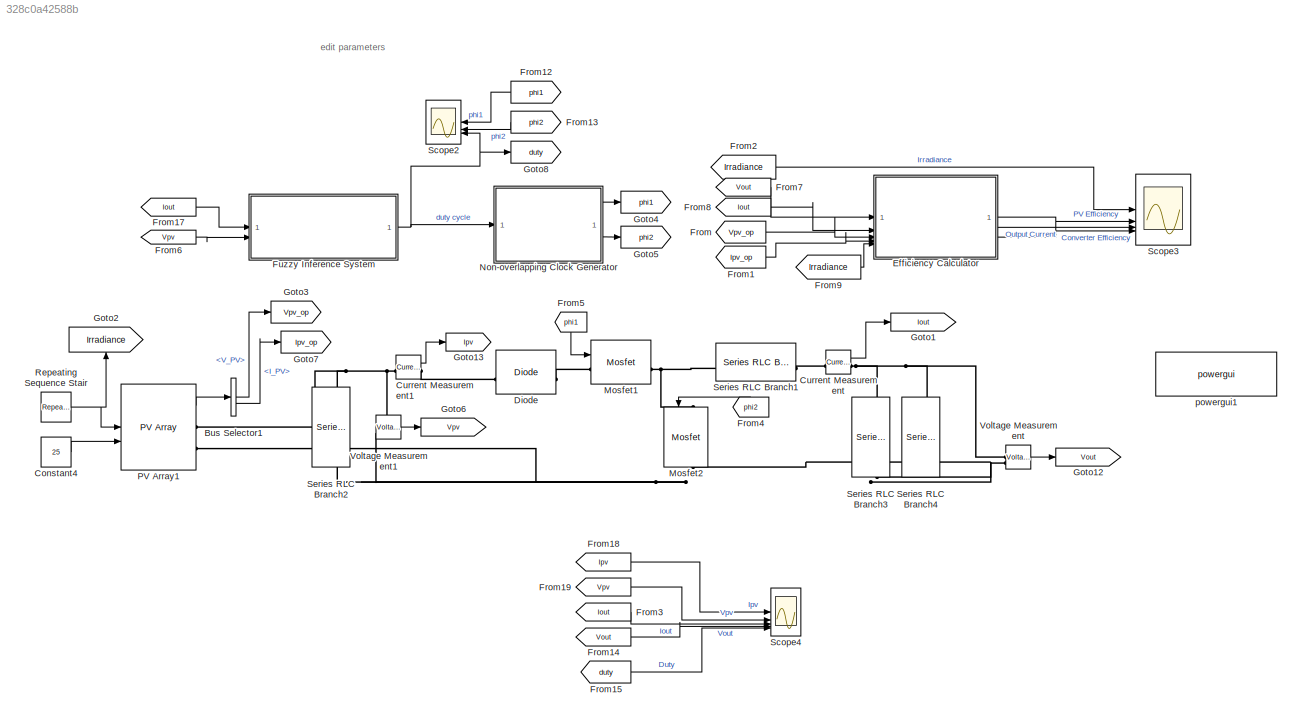
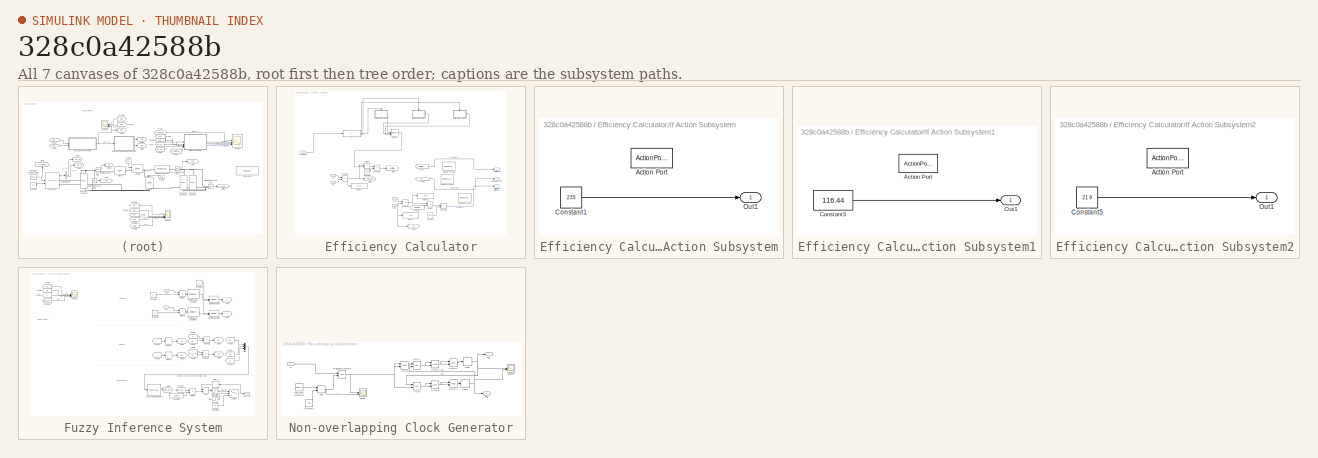
[diagram: thumbnail index - all 7 canvases of the model, root first then tree order]
MODEL slx_328c0a42588b
KIND model
CONFIG AbsTol = auto
CONFIG EnableMultiTasking = off
CONFIG FixedStep = auto
CONFIG InitFcn = run('../model_paramters/buck_converter_paramters.m')
CONFIG MaxStep = auto
CONFIG MinStep = auto
CONFIG RelTol = 1e-3
CONFIG SampleTimeConstraint = Unconstrained
CONFIG SolverName = VariableStepAuto
CONFIG StartTime = 0.0
CONFIG StopTime = Sim_Time
BLOCK [BusSelector] Bus Selector1
  OutputSignals = V_PV,I_PV
BLOCK [Constant] Constant4
  Value = 25
BLOCK [Reference] Current Measurement  REF=spsCurrentMeasurementLib/Current Measurement
  LibrarySourceBlock = sps_lib/Sensors and Measurements/Current Measurement
  SourceBlock = spsCurrentMeasurementLib/Current Measurement
  SourceType = Current Measurement
  UserDataPersistent = on
BLOCK [Reference] Current Measurement1  REF=spsCurrentMeasurementLib/Current Measurement
  LibrarySourceBlock = sps_lib/Sensors and Measurements/Current Measurement
  SourceBlock = spsCurrentMeasurementLib/Current Measurement
  SourceType = Current Measurement
  UserDataPersistent = on
BLOCK [Reference] Diode  REF=spsDiodeLib/Diode
  LibrarySourceBlock = sps_lib/Power Electronics/Diode
  SourceBlock = spsDiodeLib/Diode
  SourceType = Diode
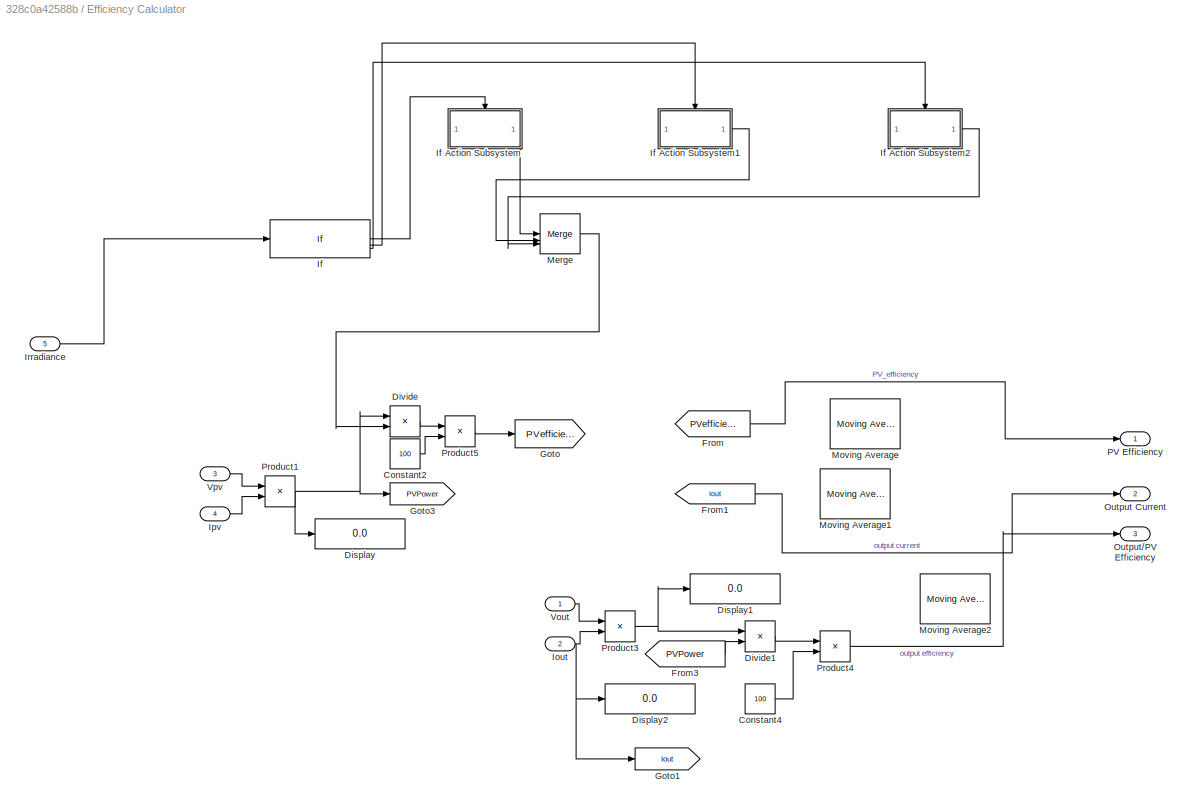
BLOCK [SubSystem] Efficiency Calculator
BLOCK [Constant] Efficiency Calculator/Constant2
  Value = 100
BLOCK [Constant] Efficiency Calculator/Constant4
  Value = 100
BLOCK [Display] Efficiency Calculator/Display
  Decimation = 1
  Format = decimal (Stored Integer)
BLOCK [Display] Efficiency Calculator/Display1
  Decimation = 1
  Format = decimal (Stored Integer)
BLOCK [Display] Efficiency Calculator/Display2
  Decimation = 1
  Format = decimal (Stored Integer)
BLOCK [Product] Efficiency Calculator/Divide
  Inputs = */
BLOCK [Product] Efficiency Calculator/Divide1
  Inputs = */
BLOCK [From] Efficiency Calculator/From
  GotoTag = PVefficiency
BLOCK [From] Efficiency Calculator/From1
  GotoTag = Iout
BLOCK [From] Efficiency Calculator/From3
  GotoTag = PVPower
BLOCK [Goto] Efficiency Calculator/Goto
  GotoTag = PVefficiency
BLOCK [Goto] Efficiency Calculator/Goto1
  GotoTag = Iout
BLOCK [Goto] Efficiency Calculator/Goto3
  GotoTag = PVPower
BLOCK [If] Efficiency Calculator/If
  ElseIfExpressions = u1==500, u1==100
  IfExpression = u1 == 1000
  ShowElse = off
BLOCK [SubSystem] Efficiency Calculator/If Action Subsystem
  TreatAsAtomicUnit = on
BLOCK [ActionPort] Efficiency Calculator/If Action Subsystem/Action Port
  ActionPortLabel = if(u1 == 1000)
BLOCK [Constant] Efficiency Calculator/If Action Subsystem/Constant1
  Value = 235
BLOCK [Outport] Efficiency Calculator/If Action Subsystem/Out1
BLOCK [SubSystem] Efficiency Calculator/If Action Subsystem1
  TreatAsAtomicUnit = on
BLOCK [ActionPort] Efficiency Calculator/If Action Subsystem1/Action Port
  ActionPortLabel = elseif(u1==500)
BLOCK [Constant] Efficiency Calculator/If Action Subsystem1/Constant3
  Value = 116.44
BLOCK [Outport] Efficiency Calculator/If Action Subsystem1/Out1
BLOCK [SubSystem] Efficiency Calculator/If Action Subsystem2
  TreatAsAtomicUnit = on
BLOCK [ActionPort] Efficiency Calculator/If Action Subsystem2/Action Port
  ActionPortLabel = elseif( u1==100)
BLOCK [Constant] Efficiency Calculator/If Action Subsystem2/Constant5
  Value = 21.9
BLOCK [Outport] Efficiency Calculator/If Action Subsystem2/Out1
BLOCK [Inport] Efficiency Calculator/Iout
  Port = 2
BLOCK [Inport] Efficiency Calculator/Ipv
  Port = 4
BLOCK [Inport] Efficiency Calculator/Irradiance
  Port = 5
BLOCK [Merge] Efficiency Calculator/Merge
  Inputs = 3
BLOCK [Reference] Efficiency Calculator/Moving Average  REF=eeGeneralControl/Moving Average
  Commented = on
  LibrarySourceBlock = ee_sl_lib/General Control/Moving Average
  SourceBlock = eeGeneralControl/Moving Average
  SourceType = Moving Average
BLOCK [Reference] Efficiency Calculator/Moving Average1  REF=eeGeneralControl/Moving Average
  Commented = on
  LibrarySourceBlock = ee_sl_lib/General Control/Moving Average
  SourceBlock = eeGeneralControl/Moving Average
  SourceType = Moving Average
BLOCK [Reference] Efficiency Calculator/Moving Average2  REF=eeGeneralControl/Moving Average
  Commented = on
  LibrarySourceBlock = ee_sl_lib/General Control/Moving Average
  SourceBlock = eeGeneralControl/Moving Average
  SourceType = Moving Average
BLOCK [Outport] Efficiency Calculator/Output Current
  Port = 2
BLOCK [Outport] Efficiency Calculator/Output//PV Efficiency
  NameLocation = left
  Port = 3
BLOCK [Outport] Efficiency Calculator/PV Efficiency
BLOCK [Product] Efficiency Calculator/Product1
BLOCK [Product] Efficiency Calculator/Product3
BLOCK [Product] Efficiency Calculator/Product4
BLOCK [Product] Efficiency Calculator/Product5
BLOCK [Inport] Efficiency Calculator/Vout
BLOCK [Inport] Efficiency Calculator/Vpv
  Port = 3
BLOCK [From] From
  GotoTag = Vpv_op
BLOCK [From] From1
  GotoTag = Ipv_op
BLOCK [From] From12
  GotoTag = phi1
  NameLocation = top
BLOCK [From] From13
  GotoTag = phi2
  NameLocation = top
BLOCK [From] From14
  GotoTag = Vout
BLOCK [From] From15
  GotoTag = duty
BLOCK [From] From17
  GotoTag = Iout
BLOCK [From] From18
  GotoTag = Ipv
BLOCK [From] From19
  GotoTag = Vpv
BLOCK [From] From2
  GotoTag = Irradiance
BLOCK [From] From3
  GotoTag = Iout
BLOCK [From] From4
  GotoTag = phi2
  NameLocation = right
BLOCK [From] From5
  GotoTag = phi1
  NameLocation = left
BLOCK [From] From6
  GotoTag = Vpv
BLOCK [From] From7
  GotoTag = Vout
BLOCK [From] From8
  GotoTag = Iout
BLOCK [From] From9
  GotoTag = Irradiance
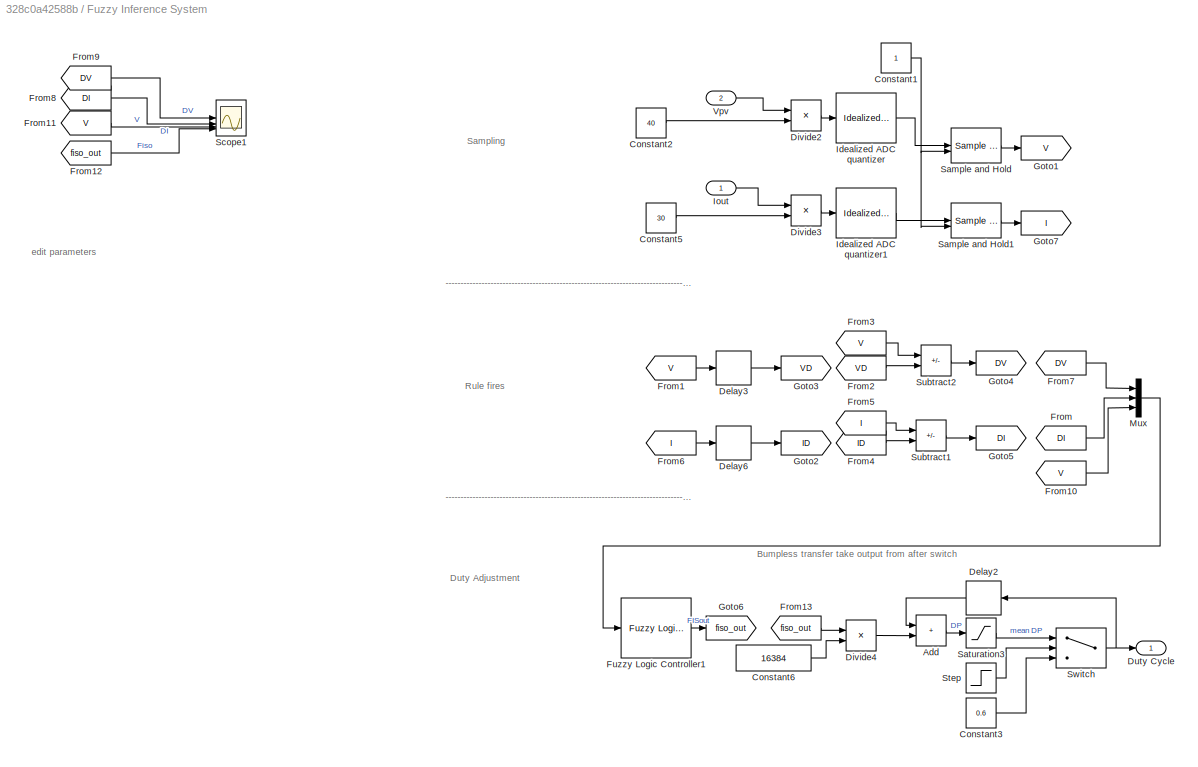
BLOCK [SubSystem] Fuzzy Inference System
BLOCK [Sum] Fuzzy Inference System/Add
  IconShape = rectangular
BLOCK [Constant] Fuzzy Inference System/Constant1
BLOCK [Constant] Fuzzy Inference System/Constant2
  Value = 40
BLOCK [Constant] Fuzzy Inference System/Constant3
  Value = 0.6
BLOCK [Constant] Fuzzy Inference System/Constant5
  Value = 30
BLOCK [Constant] Fuzzy Inference System/Constant6
  Value = 16384
BLOCK [Delay] Fuzzy Inference System/Delay2
  DelayLength = 1
  InputPortMap = u0
  NameLocation = top
  SampleTime = 1/sampling
BLOCK [Delay] Fuzzy Inference System/Delay3
  DelayLength = 1
  InputPortMap = u0
  SampleTime = 1/sampling
BLOCK [Delay] Fuzzy Inference System/Delay6
  DelayLength = 1
  InputPortMap = u0
  SampleTime = 1/sampling
BLOCK [Product] Fuzzy Inference System/Divide2
  Inputs = */
BLOCK [Product] Fuzzy Inference System/Divide3
  Inputs = */
BLOCK [Product] Fuzzy Inference System/Divide4
  Inputs = */
BLOCK [Outport] Fuzzy Inference System/Duty Cycle
BLOCK [From] Fuzzy Inference System/From
  GotoTag = DI
BLOCK [From] Fuzzy Inference System/From1
  GotoTag = V
BLOCK [From] Fuzzy Inference System/From10
  GotoTag = V
BLOCK [From] Fuzzy Inference System/From11
  GotoTag = V
BLOCK [From] Fuzzy Inference System/From12
  GotoTag = fiso_out
BLOCK [From] Fuzzy Inference System/From13
  GotoTag = fiso_out
BLOCK [From] Fuzzy Inference System/From2
  GotoTag = VD
BLOCK [From] Fuzzy Inference System/From3
  GotoTag = V
BLOCK [From] Fuzzy Inference System/From4
  GotoTag = ID
  NameLocation = top
BLOCK [From] Fuzzy Inference System/From5
  GotoTag = I
  NameLocation = top
BLOCK [From] Fuzzy Inference System/From6
  GotoTag = I
BLOCK [From] Fuzzy Inference System/From7
  GotoTag = DV
BLOCK [From] Fuzzy Inference System/From8
  GotoTag = DI
BLOCK [From] Fuzzy Inference System/From9
  GotoTag = DV
BLOCK [Reference] Fuzzy Inference System/Fuzzy Logic Controller1  REF=fuzblock/Fuzzy Logic   (lib defined in mdl_858b3b3e7478)
Controller
  SourceBlock = fuzblock/Fuzzy Logic \nController
  SourceType = Fuzzy Inference System
BLOCK [Goto] Fuzzy Inference System/Goto1
  GotoTag = V
BLOCK [Goto] Fuzzy Inference System/Goto2
  GotoTag = ID
BLOCK [Goto] Fuzzy Inference System/Goto3
  GotoTag = VD
BLOCK [Goto] Fuzzy Inference System/Goto4
  GotoTag = DV
BLOCK [Goto] Fuzzy Inference System/Goto5
  GotoTag = DI
  NameLocation = top
BLOCK [Goto] Fuzzy Inference System/Goto6
  GotoTag = fiso_out
BLOCK [Goto] Fuzzy Inference System/Goto7
  GotoTag = I
BLOCK [Reference] Fuzzy Inference System/Idealized ADC quantizer  REF=simulink_extras/Additional
Discrete/Idealized ADC quantizer
  AttributesFormatString = (settings: %<NumberOfConverterBits>-bit converter\nVmin: %<Vmin>, Vmax: %<Vmax>)
  SourceBlock = simulink_extras/Additional\nDiscrete/Idealized ADC quantizer
  SourceType = IdealADC
BLOCK [Reference] Fuzzy Inference System/Idealized ADC quantizer1  REF=simulink_extras/Additional
Discrete/Idealized ADC quantizer
  AttributesFormatString = (settings: %<NumberOfConverterBits>-bit converter\nVmin: %<Vmin>, Vmax: %<Vmax>)
  SourceBlock = simulink_extras/Additional\nDiscrete/Idealized ADC quantizer
  SourceType = IdealADC
BLOCK [Inport] Fuzzy Inference System/Iout
BLOCK [Mux] Fuzzy Inference System/Mux
  DisplayOption = bar
  Inputs = 3
BLOCK [Reference] Fuzzy Inference System/Sample and Hold  REF=spsSampleandHoldLib/Sample and
Hold
  LibrarySourceBlock = sps_lib/Control/Sample and\nHold
  SourceBlock = spsSampleandHoldLib/Sample and\nHold
  SourceType = Sample and Hold
BLOCK [Reference] Fuzzy Inference System/Sample and Hold1  REF=spsSampleandHoldLib/Sample and
Hold
  LibrarySourceBlock = sps_lib/Control/Sample and\nHold
  SourceBlock = spsSampleandHoldLib/Sample and\nHold
  SourceType = Sample and Hold
BLOCK [Saturate] Fuzzy Inference System/Saturation3
  LowerLimit = 0.25
  UpperLimit = 0.75
BLOCK [Scope] Fuzzy Inference System/Scope1
  Floating = off
  NumInputPorts = 4
  ScopeSpecificationString = Simulink.scopes.TimeScopeBlockCfg('CurrentConfiguration', extmgr.ConfigurationSet(extmgr.Configuration('Core','General UI',true),extmgr.Configuration('Core','Source UI',true),extmgr.Configuration('Sources','WiredSimulink',true,'DataLoggingVariableName','ScopeData1'),extmgr.Configuration('Visuals','Time Domain',true,'SerializedDisplays',{struct('MinYLimReal','-116.875','MaxYLimReal','331.875','YLab...<+3887ch>
BLOCK [Step] Fuzzy Inference System/Step
  Time = Sim_Time/3
BLOCK [Sum] Fuzzy Inference System/Subtract1
  IconShape = rectangular
  Inputs = +-
  NameLocation = top
BLOCK [Sum] Fuzzy Inference System/Subtract2
  IconShape = rectangular
  Inputs = +-
BLOCK [Switch] Fuzzy Inference System/Switch
  Criteria = u2 > Threshold
  InputSameDT = off
  SaturateOnIntegerOverflow = off
  Threshold = 0.5
BLOCK [Inport] Fuzzy Inference System/Vpv
  Port = 2
BLOCK [Goto] Goto1
  GotoTag = Iout
BLOCK [Goto] Goto12
  GotoTag = Vout
BLOCK [Goto] Goto13
  GotoTag = Ipv
BLOCK [Goto] Goto2
  GotoTag = Irradiance
  NameLocation = right
BLOCK [Goto] Goto3
  GotoTag = Vpv_op
BLOCK [Goto] Goto4
  GotoTag = phi1
BLOCK [Goto] Goto5
  GotoTag = phi2
BLOCK [Goto] Goto6
  GotoTag = Vpv
BLOCK [Goto] Goto7
  GotoTag = Ipv_op
BLOCK [Goto] Goto8
  GotoTag = duty
BLOCK [Reference] Mosfet1  REF=spsMosfetLib/Mosfet
  LibrarySourceBlock = sps_lib/Power Electronics/Mosfet
  SourceBlock = spsMosfetLib/Mosfet
  SourceType = Mosfet
BLOCK [Reference] Mosfet2  REF=spsMosfetLib/Mosfet
  LibrarySourceBlock = sps_lib/Power Electronics/Mosfet
  NameLocation = left
  SourceBlock = spsMosfetLib/Mosfet
  SourceType = Mosfet
BLOCK [SubSystem] Non-overlapping Clock Generator
BLOCK [Sum] Non-overlapping Clock Generator/Add3
  IconShape = rectangular
BLOCK [Constant] Non-overlapping Clock Generator/Constant1
  Value = 0.5
BLOCK [Inport] Non-overlapping Clock Generator/D
BLOCK [Delay] Non-overlapping Clock Generator/Delay
  DelayLength = 1
  InputPortMap = u0
  SampleTime = 1/(f_sw*100)
BLOCK [Delay] Non-overlapping Clock Generator/Delay1
  DelayLength = 1
  InputPortMap = u0
  SampleTime = 1/(f_sw*100)
BLOCK [Logic] Non-overlapping Clock Generator/NAND
  AllPortsSameDT = off
  IconShape = distinctive
  Operator = NAND
  OutDataTypeStr = boolean
BLOCK [Logic] Non-overlapping Clock Generator/NAND1
  AllPortsSameDT = off
  IconShape = distinctive
  Operator = NAND
  OutDataTypeStr = boolean
BLOCK [Logic] Non-overlapping Clock Generator/NAND2
  AllPortsSameDT = off
  IconShape = distinctive
  Operator = NAND
  OutDataTypeStr = boolean
BLOCK [Logic] Non-overlapping Clock Generator/NAND3
  AllPortsSameDT = off
  IconShape = distinctive
  Operator = NAND
  OutDataTypeStr = boolean
BLOCK [Logic] Non-overlapping Clock Generator/NAND4
  AllPortsSameDT = off
  IconShape = distinctive
  Operator = NAND
  OutDataTypeStr = boolean
BLOCK [Logic] Non-overlapping Clock Generator/NOR
  AllPortsSameDT = off
  IconShape = distinctive
  Operator = NOR
  OutDataTypeStr = boolean
BLOCK [Logic] Non-overlapping Clock Generator/NOR1
  AllPortsSameDT = off
  IconShape = distinctive
  Operator = NOR
  OutDataTypeStr = boolean
BLOCK [Outport] Non-overlapping Clock Generator/Phi1
BLOCK [Outport] Non-overlapping Clock Generator/Phi2
  Port = 2
BLOCK [RelationalOperator] Non-overlapping Clock Generator/Relational Operator
  InputSameDT = off
  OutDataTypeStr = boolean
  RndMeth = Simplest
BLOCK [SignalGenerator] Non-overlapping Clock Generator/Sawtooth Generator
  Amplitude = -0.5
  Frequency = f_sw
  WaveForm = sawtooth
BLOCK [Scope] Non-overlapping Clock Generator/Scope
  Floating = off
  NumInputPorts = 2
  ScopeSpecificationString = Simulink.scopes.TimeScopeBlockCfg('CurrentConfiguration', extmgr.ConfigurationSet(extmgr.Configuration('Core','General UI',true),extmgr.Configuration('Core','Source UI',true),extmgr.Configuration('Sources','WiredSimulink',true,'DataLoggingVariableName','ScopeData4'),extmgr.Configuration('Visuals','Time Domain',true,'SerializedDisplays',{struct('MinYLimReal','0.9','MaxYLimReal','1.1','YLabelReal','...<+2611ch>
BLOCK [Scope] Non-overlapping Clock Generator/Scope1
  Floating = off
  NumInputPorts = 2
  ScopeSpecificationString = Simulink.scopes.TimeScopeBlockCfg('CurrentConfiguration', extmgr.ConfigurationSet(extmgr.Configuration('Core','General UI',true),extmgr.Configuration('Core','Source UI',true),extmgr.Configuration('Sources','WiredSimulink',true,'DataLoggingVariableName','ScopeData1'),extmgr.Configuration('Visuals','Time Domain',true,'SerializedDisplays',{struct('MinYLimReal','-0.125','MaxYLimReal','1.125','YLabelRe...<+2580ch>
BLOCK [Reference] PV Array1  REF=spsPVArrayLib/PV Array
  LibrarySourceBlock = sps_lib/Sources/PV Array
  SourceBlock = spsPVArrayLib/PV Array
  SourceType = PV array
BLOCK [Reference] Repeating Sequence Stair  REF=simulink/Sources/Repeating
Sequence
Stair
  SourceBlock = simulink/Sources/Repeating\nSequence\nStair
  SourceType = Repeating Sequence Stair
BLOCK [Scope] Scope2
  Floating = off
  NameLocation = top
  NumInputPorts = 3
  ScopeSpecificationString = Simulink.scopes.TimeScopeBlockCfg('CurrentConfiguration', extmgr.ConfigurationSet(extmgr.Configuration('Core','General UI',true,'FigureColor',[1 1 1]),extmgr.Configuration('Core','Source UI',true),extmgr.Configuration('Sources','WiredSimulink',true,'DataLoggingVariableName','ScopeData5'),extmgr.Configuration('Visuals','Time Domain',true,'SerializedDisplays',{struct('MinYLimReal','-0.125','MaxYLimR...<+3492ch>
BLOCK [Scope] Scope3
  Floating = off
  NumInputPorts = 4
  ScopeSpecificationString = Simulink.scopes.TimeScopeBlockCfg('CurrentConfiguration', extmgr.ConfigurationSet(extmgr.Configuration('Core','General UI',true,'FigureColor',[1 1 1]),extmgr.Configuration('Core','Source UI',true),extmgr.Configuration('Sources','WiredSimulink',true,'DataLoggingVariableName','ScopeData1'),extmgr.Configuration('Visuals','Time Domain',true,'PlotType','Line','SerializedDisplays',{struct('MinYLimReal',...<+4511ch>
BLOCK [Scope] Scope4
  Floating = off
  NumInputPorts = 5
  ScopeSpecificationString = Simulink.scopes.TimeScopeBlockCfg('CurrentConfiguration', extmgr.ConfigurationSet(extmgr.Configuration('Core','General UI',true),extmgr.Configuration('Core','Source UI',true),extmgr.Configuration('Sources','WiredSimulink',true,'DataLoggingVariableName','ScopeData2'),extmgr.Configuration('Visuals','Time Domain',true,'SerializedDisplays',{struct('MinYLimReal','-4.11513','MaxYLimReal','32.30421','YLa...<+6875ch>
BLOCK [Reference] Series RLC Branch1  REF=spsSeriesRLCBranchLib/Series RLC Branch
  LibrarySourceBlock = sps_lib/Passives/Series RLC Branch
  NameLocation = top
  SourceBlock = spsSeriesRLCBranchLib/Series RLC Branch
  SourceType = Series RLC Branch
BLOCK [Reference] Series RLC Branch2  REF=spsSeriesRLCBranchLib/Series RLC Branch
  LibrarySourceBlock = sps_lib/Passives/Series RLC Branch
  NameLocation = left
  SourceBlock = spsSeriesRLCBranchLib/Series RLC Branch
  SourceType = Series RLC Branch
BLOCK [Reference] Series RLC Branch3  REF=spsSeriesRLCBranchLib/Series RLC Branch
  LibrarySourceBlock = sps_lib/Passives/Series RLC Branch
  NameLocation = left
  SourceBlock = spsSeriesRLCBranchLib/Series RLC Branch
  SourceType = Series RLC Branch
BLOCK [Reference] Series RLC Branch4  REF=spsSeriesRLCBranchLib/Series RLC Branch
  LibrarySourceBlock = sps_lib/Passives/Series RLC Branch
  NameLocation = left
  SourceBlock = spsSeriesRLCBranchLib/Series RLC Branch
  SourceType = Series RLC Branch
BLOCK [Reference] Voltage Measurement  REF=spsVoltageMeasurementLib/Voltage Measurement
  LibrarySourceBlock = sps_lib/Sensors and Measurements/Voltage Measurement
  SourceBlock = spsVoltageMeasurementLib/Voltage Measurement
  SourceType = Voltage Measurement
  UserDataPersistent = on
BLOCK [Reference] Voltage Measurement1  REF=spsVoltageMeasurementLib/Voltage Measurement
  LibrarySourceBlock = sps_lib/Sensors and Measurements/Voltage Measurement
  SourceBlock = spsVoltageMeasurementLib/Voltage Measurement
  SourceType = Voltage Measurement
  UserDataPersistent = on
BLOCK [Reference] powergui1  REF=sps_lib/powergui
  LibrarySourceBlock = sps_lib/powergui
  Priority = 1
  SourceBlock = sps_lib/powergui
  SourceType = PSB option menu block
ANNOTATION (root): edit parameters
ANNOTATION Fuzzy Inference System: -------------------------------------------------------------------------------------------------------------------
ANNOTATION Fuzzy Inference System: Bumpless transfer take output from after switch
ANNOTATION Fuzzy Inference System: Duty Adjustment
ANNOTATION Fuzzy Inference System: Rule fires
ANNOTATION Fuzzy Inference System: Sampling
ANNOTATION Fuzzy Inference System: edit parameters
LINE Bus Selector1:1 -> Goto3:1
LINE Bus Selector1:2 -> Goto7:1
LINE Constant4:1 -> PV Array1:2
LINE Current Measurement1:1 -> Goto13:1
LINE Current Measurement:1 -> Goto1:1
LINE Efficiency Calculator/Constant2:1 -> Efficiency Calculator/Product5:2
LINE Efficiency Calculator/Constant4:1 -> Efficiency Calculator/Product4:2
LINE Efficiency Calculator/Divide1:1 -> Efficiency Calculator/Product4:1
LINE Efficiency Calculator/Divide:1 -> Efficiency Calculator/Product5:1
LINE Efficiency Calculator/From1:1 -> Efficiency Calculator/Output Current:1
LINE Efficiency Calculator/From3:1 -> Efficiency Calculator/Divide1:2
LINE Efficiency Calculator/From:1 -> Efficiency Calculator/PV Efficiency:1
LINE Efficiency Calculator/If Action Subsystem/Constant1:1 -> Efficiency Calculator/If Action Subsystem/Out1:1
LINE Efficiency Calculator/If Action Subsystem1/Constant3:1 -> Efficiency Calculator/If Action Subsystem1/Out1:1
LINE Efficiency Calculator/If Action Subsystem1:1 -> Efficiency Calculator/Merge:2
LINE Efficiency Calculator/If Action Subsystem2/Constant5:1 -> Efficiency Calculator/If Action Subsystem2/Out1:1
LINE Efficiency Calculator/If Action Subsystem2:1 -> Efficiency Calculator/Merge:3
LINE Efficiency Calculator/If Action Subsystem:1 -> Efficiency Calculator/Merge:1
LINE Efficiency Calculator/If:1 -> Efficiency Calculator/If Action Subsystem:ifaction
LINE Efficiency Calculator/If:2 -> Efficiency Calculator/If Action Subsystem1:ifaction
LINE Efficiency Calculator/If:3 -> Efficiency Calculator/If Action Subsystem2:ifaction
NET Efficiency Calculator/Iout:1 -> Efficiency Calculator/Display2:1, Efficiency Calculator/Goto1:1, Efficiency Calculator/Product3:2
LINE Efficiency Calculator/Ipv:1 -> Efficiency Calculator/Product1:2
LINE Efficiency Calculator/Irradiance:1 -> Efficiency Calculator/If:1
LINE Efficiency Calculator/Merge:1 -> Efficiency Calculator/Divide:2
NET Efficiency Calculator/Product1:1 -> Efficiency Calculator/Display:1, Efficiency Calculator/Divide:1, Efficiency Calculator/Goto3:1
NET Efficiency Calculator/Product3:1 -> Efficiency Calculator/Display1:1, Efficiency Calculator/Divide1:1
LINE Efficiency Calculator/Product4:1 -> Efficiency Calculator/Output//PV Efficiency:1
LINE Efficiency Calculator/Product5:1 -> Efficiency Calculator/Goto:1
LINE Efficiency Calculator/Vout:1 -> Efficiency Calculator/Product3:1
LINE Efficiency Calculator/Vpv:1 -> Efficiency Calculator/Product1:1
LINE Efficiency Calculator:1 -> Scope3:2
LINE Efficiency Calculator:2 -> Scope3:3
LINE Efficiency Calculator:3 -> Scope3:4
LINE From12:1 -> Scope2:1
LINE From13:1 -> Scope2:2
LINE From14:1 -> Scope4:4
LINE From15:1 -> Scope4:5
LINE From17:1 -> Fuzzy Inference System:1
LINE From18:1 -> Scope4:1
LINE From19:1 -> Scope4:2
LINE From1:1 -> Efficiency Calculator:4
LINE From2:1 -> Scope3:1
LINE From3:1 -> Scope4:3
LINE From4:1 -> Mosfet2:1
LINE From5:1 -> Mosfet1:1
LINE From6:1 -> Fuzzy Inference System:2
LINE From7:1 -> Efficiency Calculator:1
LINE From8:1 -> Efficiency Calculator:2
LINE From9:1 -> Efficiency Calculator:5
LINE From:1 -> Efficiency Calculator:3
LINE Fuzzy Inference System/Add:1 -> Fuzzy Inference System/Saturation3:1
NET Fuzzy Inference System/Constant1:1 -> Fuzzy Inference System/Sample and Hold1:2, Fuzzy Inference System/Sample and Hold:2
LINE Fuzzy Inference System/Constant2:1 -> Fuzzy Inference System/Divide2:2
LINE Fuzzy Inference System/Constant3:1 -> Fuzzy Inference System/Switch:3
LINE Fuzzy Inference System/Constant5:1 -> Fuzzy Inference System/Divide3:2
LINE Fuzzy Inference System/Constant6:1 -> Fuzzy Inference System/Divide4:2
LINE Fuzzy Inference System/Delay2:1 -> Fuzzy Inference System/Add:1
LINE Fuzzy Inference System/Delay3:1 -> Fuzzy Inference System/Goto3:1
LINE Fuzzy Inference System/Delay6:1 -> Fuzzy Inference System/Goto2:1
LINE Fuzzy Inference System/Divide2:1 -> Fuzzy Inference System/Idealized ADC quantizer:1
LINE Fuzzy Inference System/Divide3:1 -> Fuzzy Inference System/Idealized ADC quantizer1:1
LINE Fuzzy Inference System/Divide4:1 -> Fuzzy Inference System/Add:2
LINE Fuzzy Inference System/From10:1 -> Fuzzy Inference System/Mux:3
LINE Fuzzy Inference System/From11:1 -> Fuzzy Inference System/Scope1:3
LINE Fuzzy Inference System/From12:1 -> Fuzzy Inference System/Scope1:4
LINE Fuzzy Inference System/From13:1 -> Fuzzy Inference System/Divide4:1
LINE Fuzzy Inference System/From1:1 -> Fuzzy Inference System/Delay3:1
LINE Fuzzy Inference System/From2:1 -> Fuzzy Inference System/Subtract2:2
LINE Fuzzy Inference System/From3:1 -> Fuzzy Inference System/Subtract2:1
LINE Fuzzy Inference System/From4:1 -> Fuzzy Inference System/Subtract1:2
LINE Fuzzy Inference System/From5:1 -> Fuzzy Inference System/Subtract1:1
LINE Fuzzy Inference System/From6:1 -> Fuzzy Inference System/Delay6:1
LINE Fuzzy Inference System/From7:1 -> Fuzzy Inference System/Mux:1
LINE Fuzzy Inference System/From8:1 -> Fuzzy Inference System/Scope1:2
LINE Fuzzy Inference System/From9:1 -> Fuzzy Inference System/Scope1:1
LINE Fuzzy Inference System/From:1 -> Fuzzy Inference System/Mux:2
LINE Fuzzy Inference System/Fuzzy Logic Controller1:1 -> Fuzzy Inference System/Goto6:1
LINE Fuzzy Inference System/Idealized ADC quantizer1:1 -> Fuzzy Inference System/Sample and Hold1:1
LINE Fuzzy Inference System/Idealized ADC quantizer:1 -> Fuzzy Inference System/Sample and Hold:1
LINE Fuzzy Inference System/Iout:1 -> Fuzzy Inference System/Divide3:1
LINE Fuzzy Inference System/Mux:1 -> Fuzzy Inference System/Fuzzy Logic Controller1:1
LINE Fuzzy Inference System/Sample and Hold1:1 -> Fuzzy Inference System/Goto7:1
LINE Fuzzy Inference System/Sample and Hold:1 -> Fuzzy Inference System/Goto1:1
LINE Fuzzy Inference System/Saturation3:1 -> Fuzzy Inference System/Switch:1
LINE Fuzzy Inference System/Step:1 -> Fuzzy Inference System/Switch:2
LINE Fuzzy Inference System/Subtract1:1 -> Fuzzy Inference System/Goto5:1
LINE Fuzzy Inference System/Subtract2:1 -> Fuzzy Inference System/Goto4:1
NET Fuzzy Inference System/Switch:1 -> Fuzzy Inference System/Delay2:1, Fuzzy Inference System/Duty Cycle:1
LINE Fuzzy Inference System/Vpv:1 -> Fuzzy Inference System/Divide2:1
NET Fuzzy Inference System:1 -> Goto8:1, Non-overlapping Clock Generator:1, Scope2:3
NET Non-overlapping Clock Generator/Add3:1 -> Non-overlapping Clock Generator/Relational Operator:2, Non-overlapping Clock Generator/Scope:2
LINE Non-overlapping Clock Generator/Constant1:1 -> Non-overlapping Clock Generator/Add3:2
LINE Non-overlapping Clock Generator/D:1 -> Non-overlapping Clock Generator/Relational Operator:1
NET Non-overlapping Clock Generator/Delay1:1 -> Non-overlapping Clock Generator/NOR1:2, Non-overlapping Clock Generator/Phi2:1, Non-overlapping Clock Generator/Scope1:2
NET Non-overlapping Clock Generator/Delay:1 -> Non-overlapping Clock Generator/NOR:1, Non-overlapping Clock Generator/Phi1:1, Non-overlapping Clock Generator/Scope1:1
NET Non-overlapping Clock Generator/NAND1:1 -> Non-overlapping Clock Generator/NAND2:1, Non-overlapping Clock Generator/NAND2:2
LINE Non-overlapping Clock Generator/NAND2:1 -> Non-overlapping Clock Generator/Delay:1
NET Non-overlapping Clock Generator/NAND3:1 -> Non-overlapping Clock Generator/NAND4:1, Non-overlapping Clock Generator/NAND4:2
LINE Non-overlapping Clock Generator/NAND4:1 -> Non-overlapping Clock Generator/Delay1:1
LINE Non-overlapping Clock Generator/NAND:1 -> Non-overlapping Clock Generator/NOR1:1
NET Non-overlapping Clock Generator/NOR1:1 -> Non-overlapping Clock Generator/NAND1:1, Non-overlapping Clock Generator/NAND1:2
NET Non-overlapping Clock Generator/NOR:1 -> Non-overlapping Clock Generator/NAND3:1, Non-overlapping Clock Generator/NAND3:2
NET Non-overlapping Clock Generator/Relational Operator:1 -> Non-overlapping Clock Generator/NAND:1, Non-overlapping Clock Generator/NAND:2, Non-overlapping Clock Generator/NOR:2, Non-overlapping Clock Generator/Scope:1
LINE Non-overlapping Clock Generator/Sawtooth Generator:1 -> Non-overlapping Clock Generator/Add3:1
LINE Non-overlapping Clock Generator:1 -> Goto4:1
LINE Non-overlapping Clock Generator:2 -> Goto5:1
LINE PV Array1:1 -> Bus Selector1:1
NET Repeating Sequence Stair:1 -> Goto2:1, PV Array1:1
LINE Voltage Measurement1:1 -> Goto6:1
LINE Voltage Measurement:1 -> Goto12:1
PNET net1: Current Measurement1:LConn1 -- PV Array1:RConn1 -- Series RLC Branch2:LConn1 -- Voltage Measurement1:LConn1
PLINE Current Measurement1:RConn1 -- Diode:LConn1
PLINE Current Measurement:LConn1 -- Series RLC Branch1:LConn1
PNET net2: Current Measurement:RConn1 -- Series RLC Branch3:LConn1 -- Series RLC Branch4:LConn1 -- Voltage Measurement:LConn1
PLINE Diode:RConn1 -- Mosfet1:LConn1
PNET net3: Mosfet1:RConn1 -- Mosfet2:LConn1 -- Series RLC Branch1:RConn1
PNET net4: Mosfet2:RConn1 -- PV Array1:RConn2 -- Series RLC Branch2:RConn1 -- Series RLC Branch3:RConn1 -- Voltage Measurement1:LConn2 -- Voltage Measurement:LConn2
note: NET lines group one-source signal fan-out (src -> all destinations, sorted); 1:1 wires keep LINE; PNET lines group multi-terminal physical nets as a canonical sorted terminal list (undirected conserving connections); 2-terminal nets keep the pairwise PLINE form
